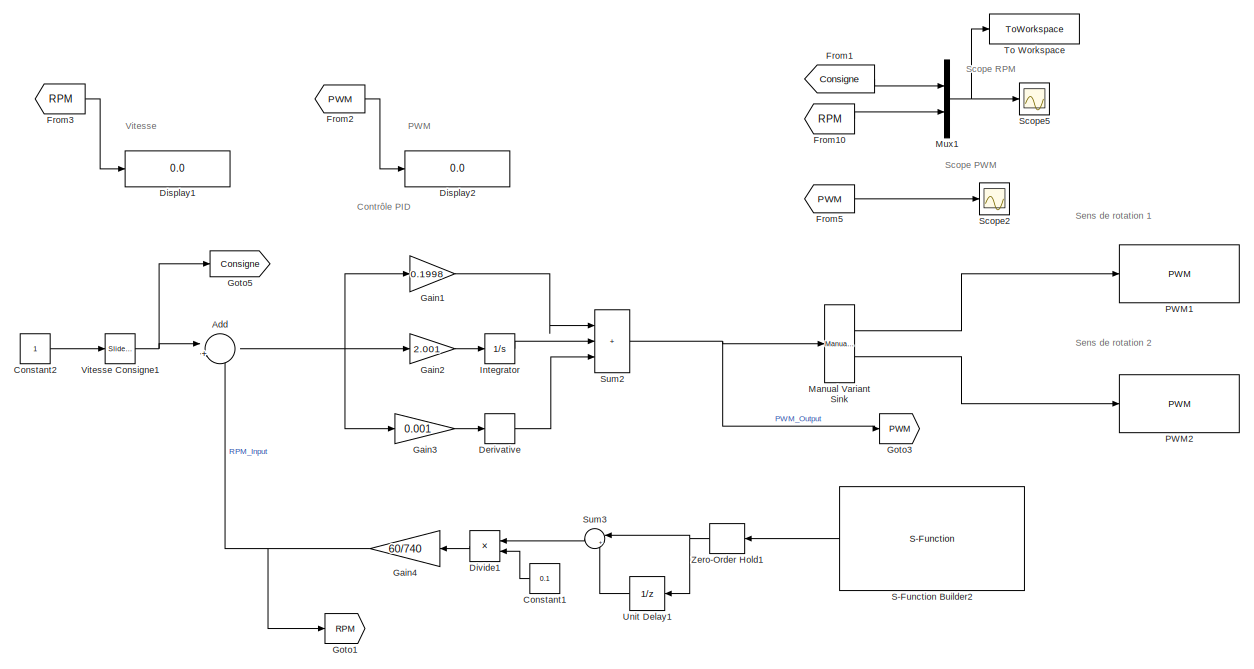
[diagram: root canvas - part 1/2, center side, full height]
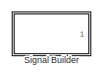
[diagram: root canvas - part 2/2, middle right region]
MODEL slx_4e00836fad90
KIND model
CONFIG AbsTol = auto
CONFIG EnableMultiTasking = on
CONFIG FixedStep = 0.1
CONFIG InitFcn = Ts=0.1;
CONFIG MaxStep = auto
CONFIG MinStep = auto
CONFIG RelTol = 1e-3
CONFIG SampleTimeConstraint = Unconstrained
CONFIG SolverName = FixedStepAuto
CONFIG StartTime = 0.0
CONFIG StopTime = inf
BLOCK [Sum] Add
  Inputs = |+-
  Ports = [2, 1]
BLOCK [Constant] Constant1
  SampleTime = 0.1
  Value = 0.1
BLOCK [Constant] Constant2
BLOCK [Derivative] Derivative
BLOCK [Display] Display1
  Decimation = 1
  Ports = [1]
BLOCK [Display] Display2
  Decimation = 1
  Ports = [1]
BLOCK [Product] Divide1
  Inputs = */
  Ports = [2, 1]
BLOCK [From] From1
  GotoTag = Consigne
BLOCK [From] From10
  GotoTag = RPM
BLOCK [From] From2
  GotoTag = PWM
BLOCK [From] From3
  GotoTag = RPM
BLOCK [From] From5
  GotoTag = PWM
BLOCK [Gain] Gain1
  Gain = 0.1998
BLOCK [Gain] Gain2
  Gain = 2.001
BLOCK [Gain] Gain3
  Gain = 0.001
BLOCK [Gain] Gain4
  Gain = 60/740
BLOCK [Goto] Goto1
  GotoTag = RPM
BLOCK [Goto] Goto3
  GotoTag = PWM
BLOCK [Goto] Goto5
  GotoTag = Consigne
BLOCK [Integrator] Integrator
  Ports = [1, 1]
BLOCK [Reference] Manual Variant Sink  REF=simulink/Signal
Routing/Manual
Variant Sink
  Ports = [1, 2]
  SourceBlock = simulink/Signal\nRouting/Manual\nVariant Sink
  SourceProductBaseCode = SL
  SourceType = ManualVariantSink
BLOCK [Mux] Mux1
  DisplayOption = bar
  Inputs = 2
  Ports = [2, 1]
BLOCK [Reference] PWM1  REF=arduinolib/PWM
  Ports = [1]
  SourceBlock = arduinolib/PWM
  SourceProductBaseCode = ARDUINO
  SourceType = Arduino PWM
BLOCK [Reference] PWM2  REF=arduinolib/PWM
  Ports = [1]
  SourceBlock = arduinolib/PWM
  SourceProductBaseCode = ARDUINO
  SourceType = Arduino PWM
BLOCK [S-Function] S-Function Builder2
  CopyFcn = set_param(gcbh,'LinkStatus','none')
  EnableBusSupport = off
  FunctionName = encoder
  InitFcn = try, set_param(gcb,'FunctionName','encoder'), end
  OpenFcn = sfunctionwizard(gcbh)
  Parameters = int8(0),int8(3),int8(2)
  Ports = [0, 1]
  PreSaveFcn = try, set_param(gcb,'FunctionName','encoder'), end
  SFcnIsStateOwnerBlock = off
  SFunctionDeploymentMode = off
  SFunctionModules = encoder_wrapper
BLOCK [Scope] Scope2
  Floating = off
  NumInputPorts = 1
  Ports = [1]
  ScopeSpecificationString = Simulink.scopes.TimeScopeBlockCfg('CurrentConfiguration', extmgr.ConfigurationSet(extmgr.Configuration('Core','General UI',true),extmgr.Configuration('Core','Source UI',true),extmgr.Configuration('Sources','WiredSimulink',true,'DataLoggingVariableName','ScopeData2'),extmgr.Configuration('Visuals','Time Domain',true,'SerializedDisplays',{struct('MinYLimReal','-19.29422','MaxYLimReal','173.64795','Y...<+1760ch>
BLOCK [Scope] Scope5
  Floating = off
  NumInputPorts = 1
  Ports = [1]
  ScopeSpecificationString = Simulink.scopes.TimeScopeBlockCfg('CurrentConfiguration', extmgr.ConfigurationSet(extmgr.Configuration('Core','General UI',true,'FigureColor',[0 0 0]),extmgr.Configuration('Core','Source UI',true),extmgr.Configuration('Sources','WiredSimulink',true,'DataLoggingVariableName','ScopeData1','DataLogging',true),extmgr.Configuration('Visuals','Time Domain',true,'SerializedDisplays',{struct('MinYLimReal'...<+1802ch>
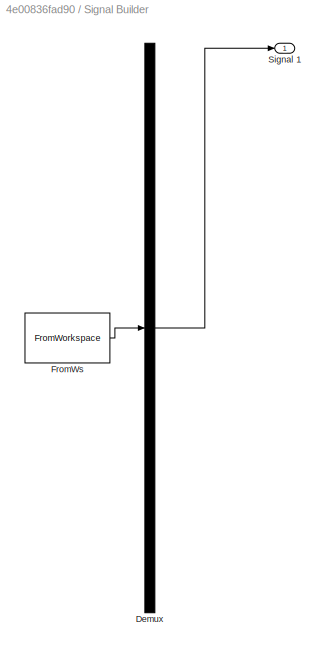
BLOCK [SubSystem] Signal Builder
  ClipboardFcn = sigbuilder_block('clipboard');
  CloseFcn = sigbuilder_block('close');
  ContinueFcn = sigbuilder_block('continue');
  CopyFcn = sigbuilder_block('copy');
  DeleteFcn = sigbuilder_block('delete');
  IOType = siggen
  LoadFcn = sigbuilder_block('load');
  MaskHideContents = on
  ModelCloseFcn = sigbuilder_block('modelClose');
  NameChangeFcn = sigbuilder_block('namechange');
  OpenFcn = sigbuilder_block('open',[437.6 199.2 550.4 400 ]);
  PauseFcn = sigbuilder_block('pause');
  Ports = [0, 1]
  PreSaveFcn = sigbuilder_block('preSave');
  RequestExecContextInheritance = off
  StartFcn = sigbuilder_block('start');
  StopFcn = sigbuilder_block('stop');
  Tag = STV Subsys
BLOCK [Demux] Signal Builder/Demux
  DisplayOption = none
  Outputs = 1
  Ports = [1, 1]
  Tag = STV Demux
BLOCK [FromWorkspace] Signal Builder/FromWs
  Tag = STV FromWs
  VariableName = tuvar
BLOCK [Outport] Signal Builder/Signal 1
  Tag = STV Outport
BLOCK [Sum] Sum2
  IconShape = rectangular
  Inputs = |+++
  Ports = [3, 1]
BLOCK [Sum] Sum3
  Inputs = |+-
  Ports = [2, 1]
BLOCK [ToWorkspace] To Workspace
  FixptAsFi = on
  MaxDataPoints = inf
  Ports = [1]
  SampleTime = -1
  SaveFormat = Timeseries
  VariableName = vitesse
BLOCK [UnitDelay] Unit Delay1
  HasFrameUpgradeWarning = on
  SampleTime = -1
BLOCK [Reference] Vitesse Consigne1  REF=simulink/Math
Operations/Slider
Gain
  Ports = [1, 1]
  SourceBlock = simulink/Math\nOperations/Slider\nGain
  SourceProductBaseCode = SL
  SourceType = Slider Gain
BLOCK [ZeroOrderHold] Zero-Order Hold1
  SampleTime = 0.1
ANNOTATION (root): PWM
ANNOTATION (root): Scope PWM
ANNOTATION (root): Scope RPM
ANNOTATION (root): Sens de rotation 1
ANNOTATION (root): Sens de rotation 2
ANNOTATION (root): Vitesse
ANNOTATION (root): Contrôle PID
NET Add:1 -> Gain1:1, Gain2:1, Gain3:1
LINE Constant1:1 -> Divide1:2
LINE Constant2:1 -> Vitesse Consigne1:1
LINE Derivative:1 -> Sum2:3
LINE Divide1:1 -> Gain4:1
LINE From10:1 -> Mux1:2
LINE From1:1 -> Mux1:1
LINE From2:1 -> Display2:1
LINE From3:1 -> Display1:1
LINE From5:1 -> Scope2:1
LINE Gain1:1 -> Sum2:1
LINE Gain2:1 -> Integrator:1
LINE Gain3:1 -> Derivative:1
NET Gain4:1 -> Add:2, Goto1:1
LINE Integrator:1 -> Sum2:2
LINE Manual Variant Sink:1 -> PWM1:1
LINE Manual Variant Sink:2 -> PWM2:1
NET Mux1:1 -> Scope5:1, To Workspace:1
LINE S-Function Builder2:1 -> Zero-Order Hold1:1
NET Sum2:1 -> Goto3:1, Manual Variant Sink:1
LINE Sum3:1 -> Divide1:1
LINE Unit Delay1:1 -> Sum3:2
NET Vitesse Consigne1:1 -> Add:1, Goto5:1
NET Zero-Order Hold1:1 -> Sum3:1, Unit Delay1:1
note: NET lines group one-source signal fan-out (src -> all destinations, sorted); 1:1 wires keep LINE
